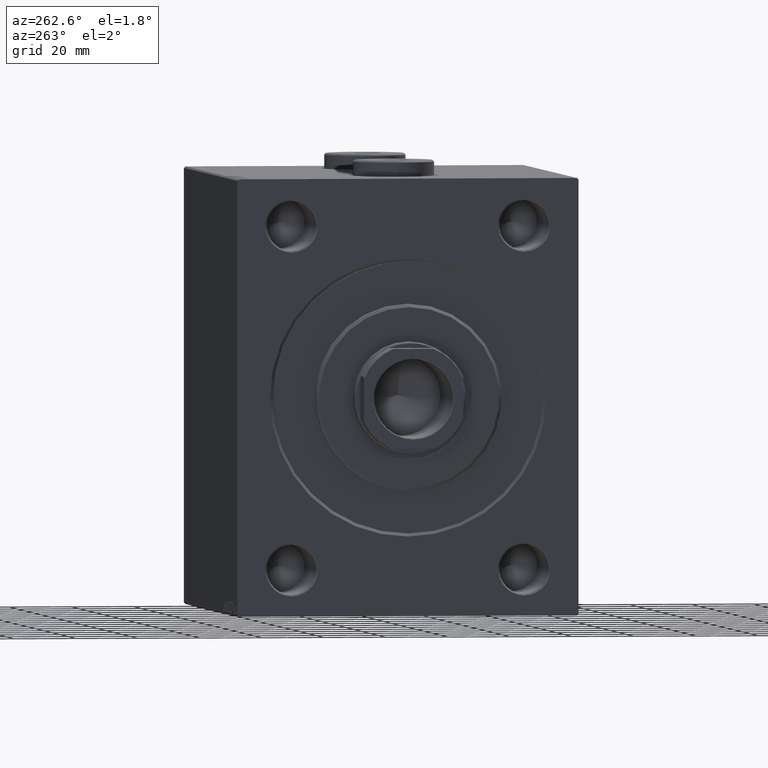
[diagram: clean part render]
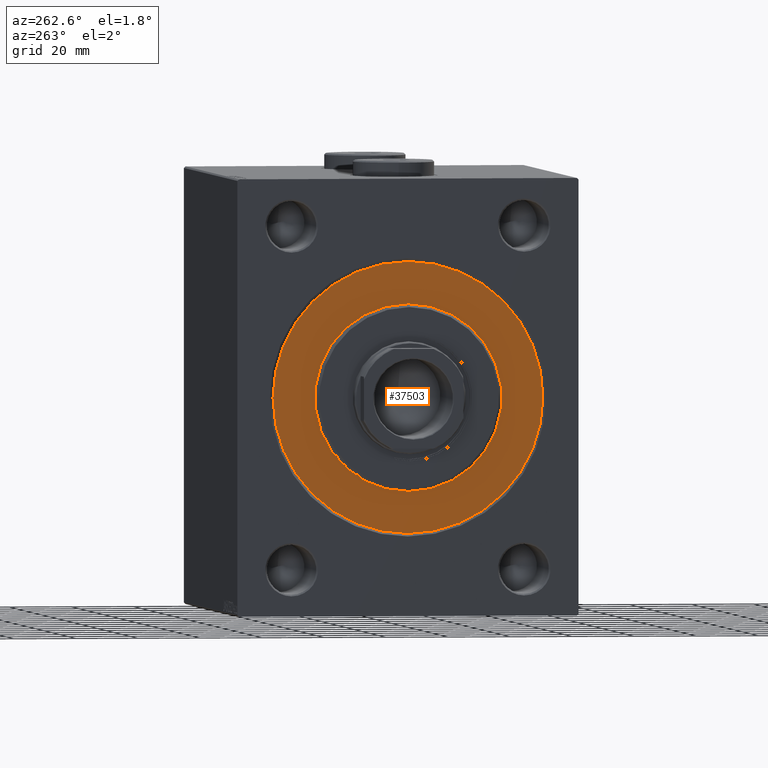
[diagram: same view with one face highlighted and labeled with its STEP entity id]
A machine part, auxiliary view. The second image highlights one B-rep face of the part: STEP entity #37503.
In plain terms, the highlighted planar face has unit normal (1, -0, -0).
Its self-contained STEP definition (entity closure, byte-faithful):
#1025 = CIRCLE ( 'NONE', #9888, 43.50000000000000000 ) ;
#1361 = CARTESIAN_POINT ( 'NONE',  ( 0.000000000000000000, 0.000000000000000000, 30.00000000000000000 ) ) ;
#1677 = PLANE ( 'NONE',  #6963 ) ;
#2234 = EDGE_CURVE ( 'NONE', #14393, #32776, #43836, .T. ) ;
#3272 = AXIS2_PLACEMENT_3D ( 'NONE', #27691, #41537, #38073 ) ;
#6438 = CIRCLE ( 'NONE', #27091, 30.00000000000000000 ) ;
#6809 = DIRECTION ( 'NONE',  ( 1.000000000000000000, -0.000000000000000000, 0.000000000000000000 ) ) ;
#6963 = AXIS2_PLACEMENT_3D ( 'NONE', #29883, #15318, #29435 ) ;
#7222 = EDGE_LOOP ( 'NONE', ( #36895, #40249 ) ) ;
#9888 = AXIS2_PLACEMENT_3D ( 'NONE', #34320, #37096, #31089 ) ;
#13182 = DIRECTION ( 'NONE',  ( 1.000000000000000000, -0.000000000000000000, 0.000000000000000000 ) ) ;
#13520 = EDGE_CURVE ( 'NONE', #13661, #32244, #6438, .T. ) ;
#13661 = VERTEX_POINT ( 'NONE', #1361 ) ;
#14393 = VERTEX_POINT ( 'NONE', #23380 ) ;
#15318 = DIRECTION ( 'NONE',  ( -1.000000000000000000, 0.000000000000000000, 0.000000000000000000 ) ) ;
#15428 = AXIS2_PLACEMENT_3D ( 'NONE', #16981, #6809, #38920 ) ;
#16313 = EDGE_LOOP ( 'NONE', ( #33145, #22310 ) ) ;
#16981 = CARTESIAN_POINT ( 'NONE',  ( 0.000000000000000000, 0.000000000000000000, 0.000000000000000000 ) ) ;
#17599 = CARTESIAN_POINT ( 'NONE',  ( 0.000000000000000000, 3.673940397442059178E-15, -30.00000000000000000 ) ) ;
#19024 = FACE_BOUND ( 'NONE', #16313, .T. ) ;
#19135 = CIRCLE ( 'NONE', #15428, 30.00000000000000000 ) ;
#19273 = EDGE_CURVE ( 'NONE', #32244, #13661, #19135, .T. ) ;
#22310 = ORIENTED_EDGE ( 'NONE', *, *, #19273, .F. ) ;
#23380 = CARTESIAN_POINT ( 'NONE',  ( 0.000000000000000000, 0.000000000000000000, -43.50000000000000000 ) ) ;
#24299 = CARTESIAN_POINT ( 'NONE',  ( 0.000000000000000000, 0.000000000000000000, 0.000000000000000000 ) ) ;
#27091 = AXIS2_PLACEMENT_3D ( 'NONE', #24299, #13182, #41830 ) ;
#27691 = CARTESIAN_POINT ( 'NONE',  ( 0.000000000000000000, 0.000000000000000000, 0.000000000000000000 ) ) ;
#29435 = DIRECTION ( 'NONE',  ( 0.000000000000000000, 0.000000000000000000, 1.000000000000000000 ) ) ;
#29883 = CARTESIAN_POINT ( 'NONE',  ( 0.000000000000000000, 0.000000000000000000, 0.000000000000000000 ) ) ;
#31089 = DIRECTION ( 'NONE',  ( 0.000000000000000000, 0.000000000000000000, 1.000000000000000000 ) ) ;
#31871 = EDGE_CURVE ( 'NONE', #32776, #14393, #1025, .T. ) ;
#32244 = VERTEX_POINT ( 'NONE', #17599 ) ;
#32776 = VERTEX_POINT ( 'NONE', #36423 ) ;
#33145 = ORIENTED_EDGE ( 'NONE', *, *, #13520, .F. ) ;
#33341 = FACE_OUTER_BOUND ( 'NONE', #7222, .T. ) ;
#34320 = CARTESIAN_POINT ( 'NONE',  ( 0.000000000000000000, 0.000000000000000000, 0.000000000000000000 ) ) ;
#36423 = CARTESIAN_POINT ( 'NONE',  ( 0.000000000000000000, 5.327213576290986044E-15, 43.50000000000000000 ) ) ;
#36895 = ORIENTED_EDGE ( 'NONE', *, *, #2234, .F. ) ;
#37096 = DIRECTION ( 'NONE',  ( -1.000000000000000000, 0.000000000000000000, 0.000000000000000000 ) ) ;
#37503 = ADVANCED_FACE ( 'NONE', ( #19024, #33341 ), #1677, .F. ) ;
#38073 = DIRECTION ( 'NONE',  ( 0.000000000000000000, 0.000000000000000000, 1.000000000000000000 ) ) ;
#38920 = DIRECTION ( 'NONE',  ( 0.000000000000000000, 0.000000000000000000, -1.000000000000000000 ) ) ;
#40249 = ORIENTED_EDGE ( 'NONE', *, *, #31871, .F. ) ;
#41537 = DIRECTION ( 'NONE',  ( -1.000000000000000000, 0.000000000000000000, 0.000000000000000000 ) ) ;
#41830 = DIRECTION ( 'NONE',  ( 0.000000000000000000, 0.000000000000000000, -1.000000000000000000 ) ) ;
#43836 = CIRCLE ( 'NONE', #3272, 43.50000000000000000 ) ;